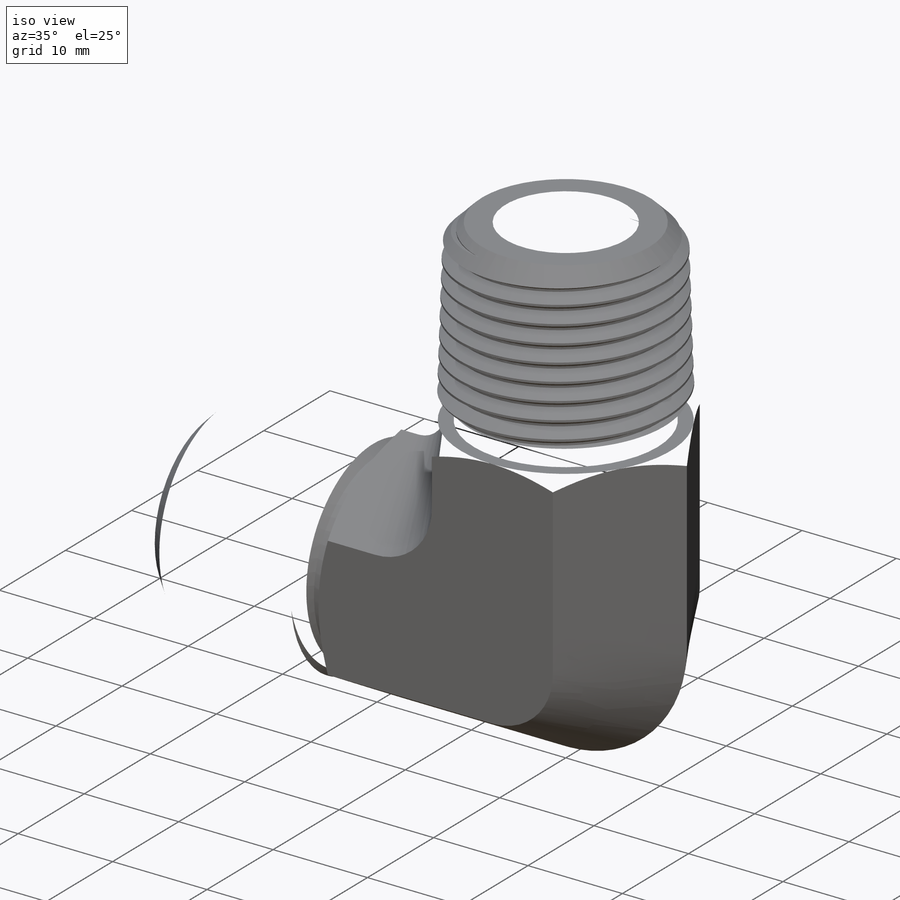
[diagram: iso view]
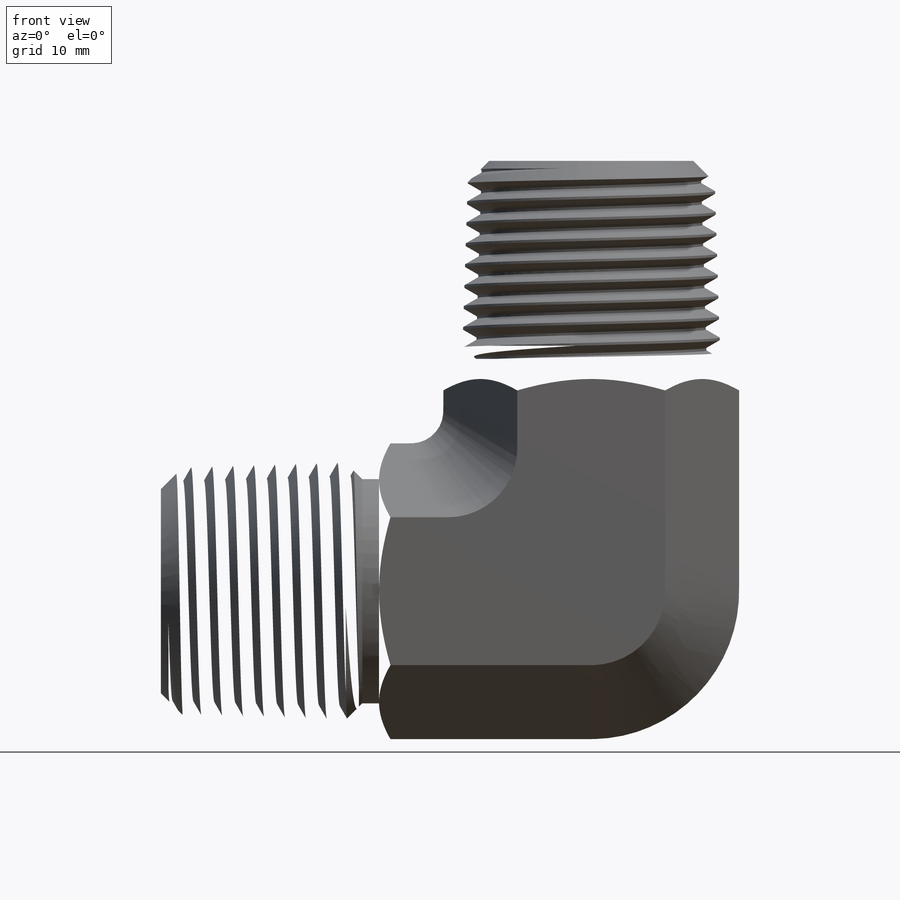
[diagram: front view]
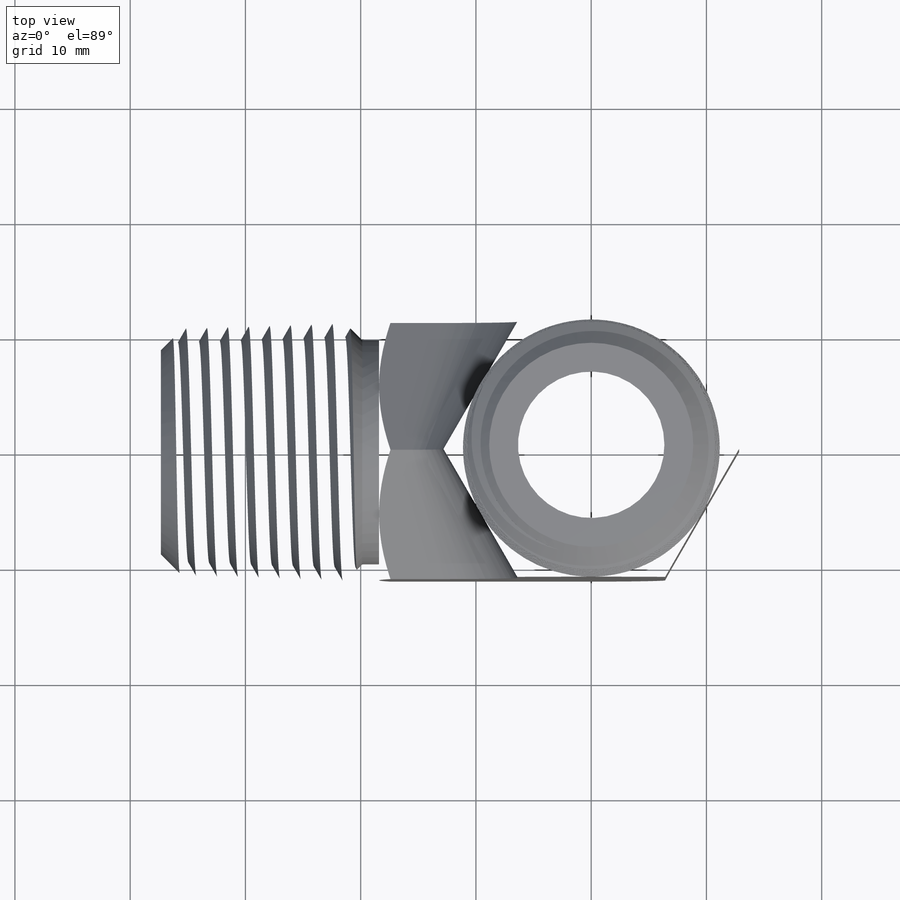
[diagram: top view]
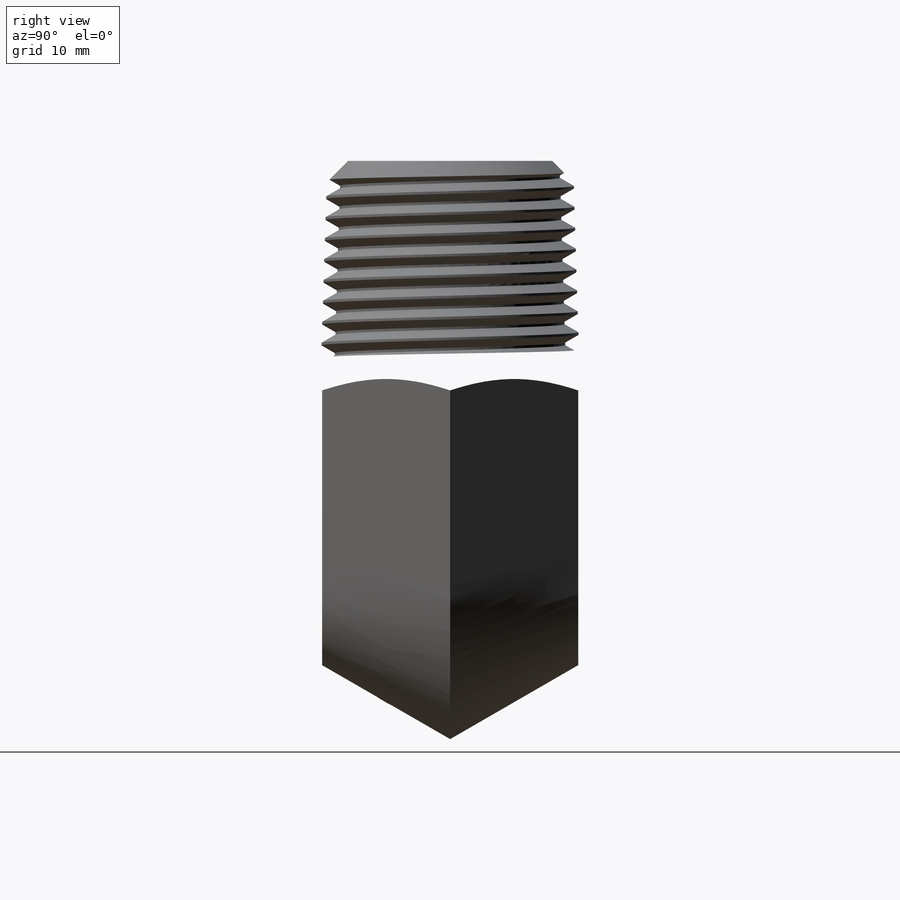
[diagram: right view]
SOLIDWORKS PART (.sldprt)
format: sldprt  version: not decoded by parser v0  size: 1,750,016 bytes
history: native  units: mm
features: sketch x21, plane x5, cut_extrude x4, cut_revolve x3, pattern_circular x2, material x1, revolve x1, extrude x1, helix x1, sweep x1, boolean_combine x1 (+13 scaffold rows collapsed)
feature tree (54):
  scaffold x13  (default folders/planes/origin — collapsed)
  material  "Material <not specified>"
  sketch  "Sketch1"  dims[c1.A=22.225mm c1.B=25.4mm c1.thread length=~10.20572mm c1.D3=~17.86001mm c1.Pipe OD=53.975mm c1.wall thickness=6.35mm c1.pipe ID=20.701mm c1.D1=22.1234mm c1.C=~11.06424mm c2.C=31.75mm c2.male OD=21.336mm c2.male thread length=~15.10284mm c2.D2=~10.20572mm c3.D2=1.5deg c3.H1=37.338mm c3.H=37.338mm c3.R=18.923mm c3.D1=24.9936mm c3.D3=~7.14375mm c4.D1=13.4112mm c4.female thread depth=~10.20572mm c5.D1=19.3802mm c5.D3=8.636mm c6.D1=18.923mm]
  plane  "Plane1"
  plane  "Plane2"
  sketch  "Sketch35"  dims[hex=22.225mm]
  plane  "Plane4"
  plane  "Plane5"
  plane  "Plane6"
  sketch  "Sketch36"  dims[D1=22.225mm]
  sketch  "Sketch37"
  sketch  "Sketch40"
  sketch  "Sketch42"
  sketch  "Sketch39"  dims[c1.D1=~35.290213mm c2.D1=35.0deg c3.D1=~0.696195mm c3.D2=~0.123174mm c4.D1=~5.58339mm c4.D2=~2.791695mm]
  sketch  "Sketch41"  dims[c1.D1=31.242mm c2.D1=45.0deg c2.D2=~11.865943mm c3.D2=~23.883835deg]
  sketch  "Sketch43"
  sketch  "Sketch15"
  revolve  "Revolve2"  Angle=360deg
  sketch  "Sketch30"
  extrude  "Extrude2"  [1 undecoded]
  sketch  "Sketch31"
  helix  "Helix/Spiral4"  Pitch=31.75mm male pitch=1.814286mm
  sketch  "Sketch32"  dims[c1.D1=~3.959956mm c2.D1=10.0deg c2.D2=~0.226786mm c2.D3=~0.907143mm c2.D4=~1.234722mm c3.D4=10.0deg c4.D4=~1.002765mm c5.D4=60.0deg]
  sweep  "Cut-Sweep9"
  sketch  "Sketch33"  dims[c1.D1=~2.462975mm c2.D1=45.0deg c2.D2=0.635mm]
  cut_revolve  "Cut-Revolve3"  Angle=360deg
  sketch  "Sketch50"
  pattern_circular  "CirPattern2"  Count=2 Angle=90deg
  boolean_combine  "Combine1"
  sketch  "Sketch34"  dims[c1.D1=~3.035284mm c2.D1=30.0deg c2.D2=~2.636855mm c3.D2=40.0deg c3.D3=0.508mm c3.D1=~1.451429mm c4.D2=~1.128889mm c5.D2=45.0deg c5.D3=0.254mm c5.D4=~2.09639mm]
  cut_revolve  "Cut-Revolve4"  Angle=360deg
  sketch  "Sketch18"  dims[pipe id=7.6708mm ID=12.7mm D1=1.016mm]
  cut_extrude  "Cut-Extrude2"  [1 undecoded]
  sketch  "Sketch19"  dims[D1=0.0mm]
  cut_revolve  "Cut-Revolve1"  Angle=90deg
  sketch  "Sketch20"
  cut_extrude  "Cut-Extrude3"  [1 undecoded]
  pattern_circular  "CirPattern3"  Count=2 Angle=90deg
  sketch  "Sketch44"
  cut_extrude  "Cut-Extrude4"  [1 undecoded]
  sketch  "Sketch45"
  cut_extrude  "Cut-Extrude5"  [1 undecoded]
decode coverage: 17 of 35 modeling features carry decoded parameters
note: ~ marks probable driven/reference dimensions
note: 5 parameter values undecoded
summary: no parameter record found for 5 features
note: suppression state not decoded; provenance and decode notes live in map.json
